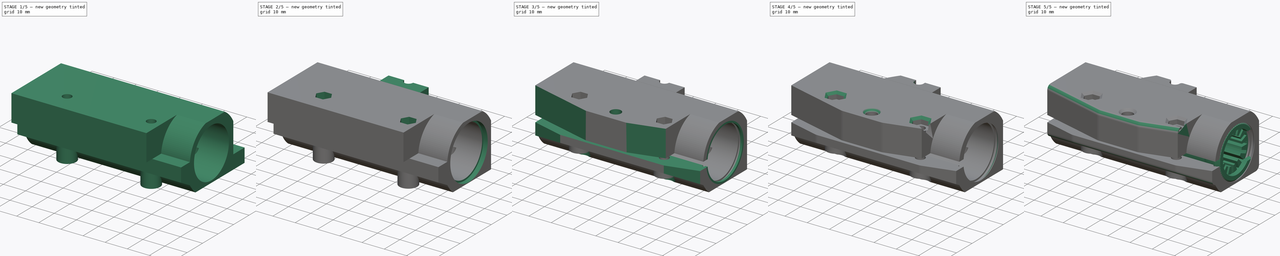
[diagram: build sequence overview — one tinted view per stage of 5, left to right]
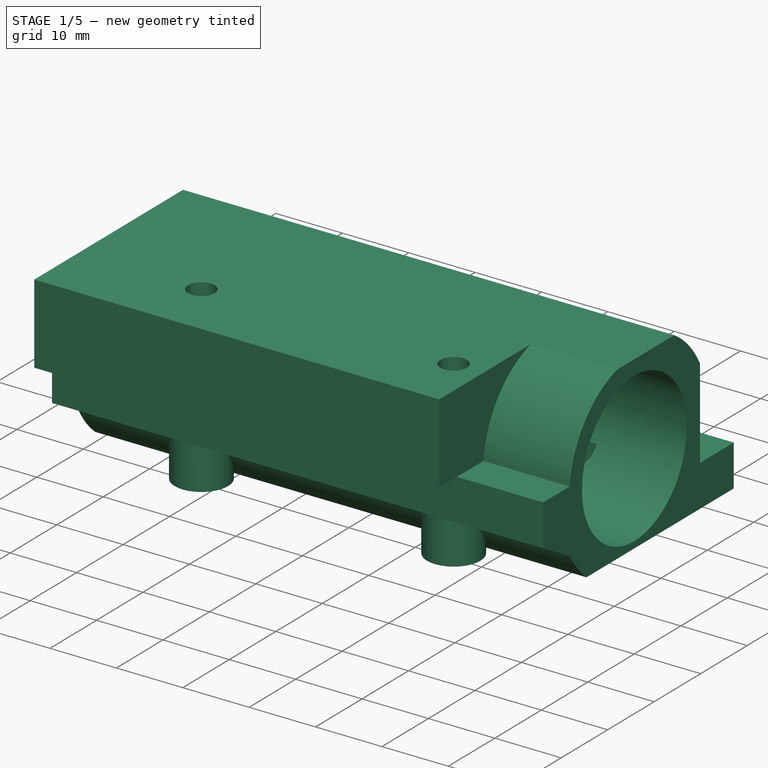
[diagram: stage 1 of 5 — iso view after this stage's code; geometry added in this stage tinted green]
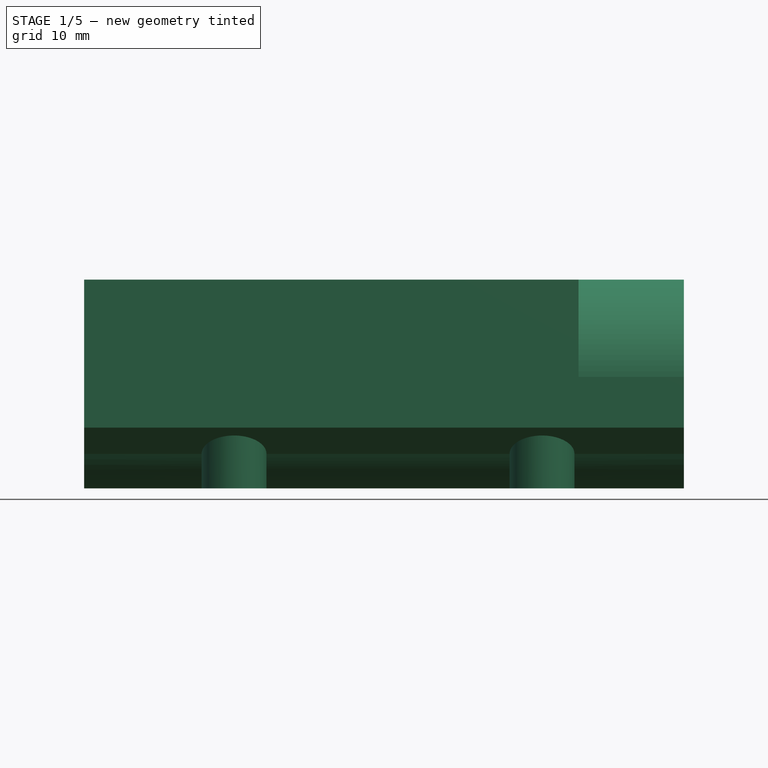
[diagram: stage 1 of 5 — front view after this stage's code; geometry added in this stage tinted green]
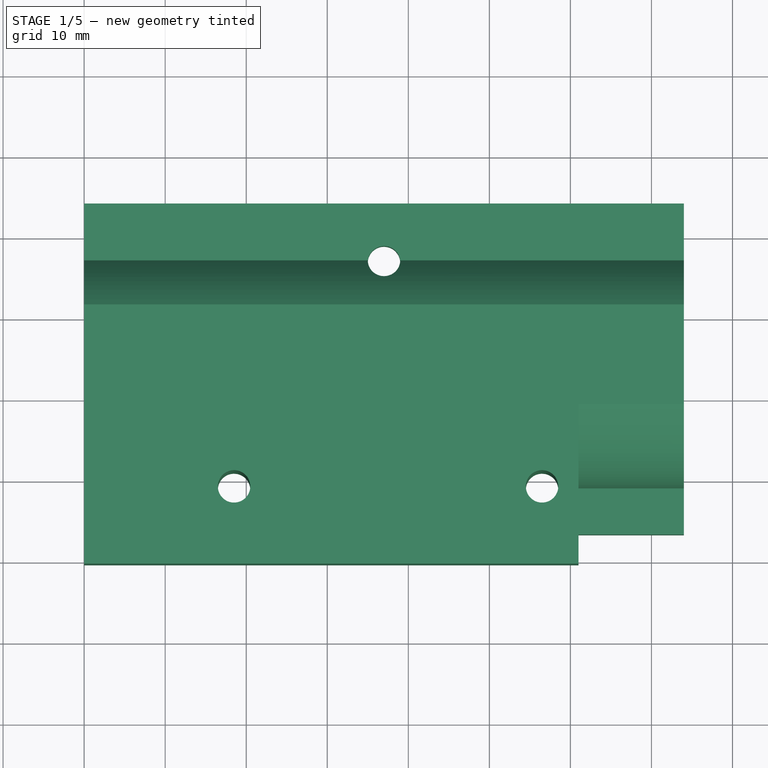
[diagram: stage 1 of 5 — top view after this stage's code; geometry added in this stage tinted green]
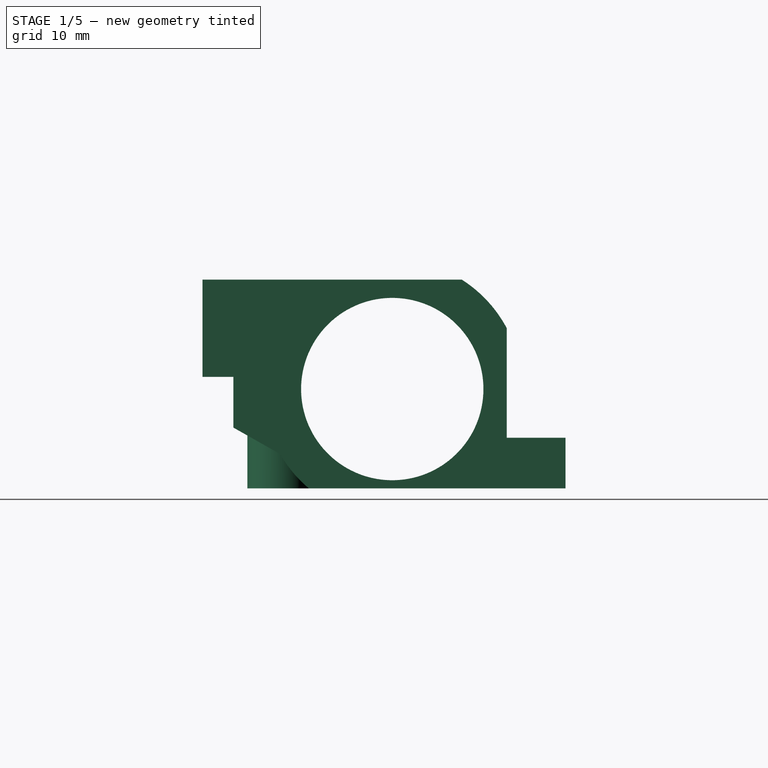
[diagram: stage 1 of 5 — right view after this stage's code; geometry added in this stage tinted green]
FCSTD DOCUMENT  (FreeCAD 0.17R13662 (Git))
Label: x_double_bearing_holder_v0.1
License: CreativeCommons Attribution-ShareAlike
LicenseURL: http://creativecommons.org/licenses/by-sa/4.0/
objects: Sketcher::SketchObject×19, PartDesign::Pocket×13, App::FeaturePython×9, PartDesign::Pad×6, Part::FeaturePython×4, PartDesign::Chamfer×4, PartDesign::Fillet×3, PartDesign::Body×1
note: 69 computed .brp shape members not serialized (recipe doc carries the construction recipe); baked Part::Feature solids carry a one-line shape summary decoded from their .brp

FEATURE [Sketcher::SketchObject] Sketch
  MapMode = 5
  Placement = pos=(0,0,0) rot=(0.57735,0.57735,0.57735;2.0944rad)
  Support = -> [YZ_Plane]
  sketch-geometry (12):
    g0: Circle [constr] CenterX=32.875 CenterY=12.25 CenterZ=0 NormalX=0 NormalY=0 NormalZ=1 AngleXU=0 Radius=16
    g1: ArcOfCircle CenterX=32.875 CenterY=12.25 CenterZ=0 NormalX=0 NormalY=0 NormalZ=1 AngleXU=0 Radius=16 StartAngle=0.48898 EndAngle=1.00423
    g2: LineSegment StartX=47 StartY=19.7656 StartZ=0 EndX=47 EndY=6.25 EndZ=0
    g3: LineSegment StartX=47 StartY=6.25 StartZ=0 EndX=54.25 EndY=6.25 EndZ=0
    g4: LineSegment StartX=54.25 StartY=6.25 StartZ=0 EndX=54.25 EndY=0 EndZ=0
    g5: LineSegment StartX=54.25 StartY=0 StartZ=0 EndX=22.5824 EndY=0 EndZ=0
    g6: LineSegment StartX=13.2686 StartY=13.75 StartZ=0 EndX=9.46278 EndY=13.75 EndZ=0
    g7: LineSegment StartX=9.46278 StartY=13.75 StartZ=0 EndX=9.46278 EndY=25.75 EndZ=0
    g8: LineSegment StartX=9.46278 StartY=25.75 StartZ=0 EndX=41.4628 EndY=25.75 EndZ=0
    g9: ArcOfCircle CenterX=32.875 CenterY=12.25 CenterZ=0 NormalX=0 NormalY=0 NormalZ=1 AngleXU=0 Radius=16 StartAngle=3.66519 EndAngle=4.0136
    g10: LineSegment StartX=13.2686 StartY=13.75 StartZ=0 EndX=13.2686 EndY=7.5 EndZ=0
    g11: LineSegment StartX=13.2686 StartY=7.5 StartZ=0 EndX=19.0186 EndY=4.25 EndZ=0
  constraints (36):
    c: DistanceX(g0) = 32.875
    c: DistanceY(g0) = 12.25
    c: Radius(g0) = 16
    c: Coincident(g2,g3)
    c: Coincident(g3,g4)
    c: Coincident(g4,g5)
    c: Coincident(g9,g5)
    c: Horizontal(g5)
    c: Horizontal(g3)
    c: Coincident(g1,g2)
    c: Equal(g1,g0)
    c: Vertical(g2)
    c: Vertical(g4)
    c: DistanceX(g4) = 54.25
    c: PointOnObject(g4,g-1)
    c: DistanceY(g4,g4) = 6.25
    c: Coincident(g0,g1)
    c: DistanceX(g3,g3) = 7.25
    c: Coincident(g6,g7)
    c: Coincident(g7,g8)
    c: Horizontal(g8)
    c: Horizontal(g6)
    c: Vertical(g7)
    c: DistanceY(g7,g7) = 12
    c: Equal(g1,g9)
    c: Coincident(g1,g9)
    c: DistanceY(g6) = 13.75
    c: Coincident(g1,g8)
    c: DistanceX(g8,g8) = 32
    c: Coincident(g10,g11)
    c: Vertical(g10)
    c: DistanceY(g10,g10) = 6.25
    c: Coincident(g9,g11)
    c: DistanceX(g11,g11) = 5.75
    c: Coincident(g6,g10)
    c: DistanceY(g11,g11) = 3.25
FEATURE [Sketcher::SketchObject] Sketch001
  MapMode = 5
  Placement = pos=(0,0,0) rot=(0.707107,0.707107,0;3.14159rad)
  sketch-geometry (2):
    g0: Circle CenterX=19 CenterY=18.5 CenterZ=0 NormalX=0 NormalY=0 NormalZ=1 AngleXU=0 Radius=4
    g1: Circle CenterX=19 CenterY=56.5 CenterZ=0 NormalX=0 NormalY=0 NormalZ=1 AngleXU=0 Radius=4
  constraints (6):
    c: DistanceX(g0) = 19
    c: DistanceY(g0) = 18.5
    c: Radius(g0) = 4
    c: DistanceX(g1,g0) = 0
    c: DistanceY(g1,g0) = -38
    c: Equal(g1,g0)
FEATURE [Sketcher::SketchObject] Sketch002
  MapMode = 5
  Placement = pos=(0,0,0) rot=(0.707107,0.707107,0;3.14159rad)
  sketch-geometry (2):
    g0: Circle CenterX=43 CenterY=59 CenterZ=0 NormalX=0 NormalY=0 NormalZ=1 AngleXU=0 Radius=2.35
    g1: Circle CenterX=43 CenterY=15 CenterZ=0 NormalX=0 NormalY=0 NormalZ=1 AngleXU=0 Radius=2.35
  constraints (6):
    c: DistanceX(g1) = 43
    c: DistanceY(g1) = 15
    c: DistanceX(g1,g0) = 0
    c: DistanceY(g1,g0) = 44
    c: Radius(g1) = 2.35
    c: Equal(g1,g0)
FEATURE [Sketcher::SketchObject] Sketch003
  MapMode = 5
  Placement = pos=(0,0,25.75) rot=(0,0,-1;1.5708rad)
  sketch-geometry (4):
    g0: Circle CenterX=-19 CenterY=56.5 CenterZ=0 NormalX=0 NormalY=0 NormalZ=1 AngleXU=0 Radius=2
    g1: Circle CenterX=-47 CenterY=37 CenterZ=0 NormalX=0 NormalY=0 NormalZ=1 AngleXU=0 Radius=2
    g2: LineSegment [constr] StartX=-19 StartY=56.5 StartZ=0 EndX=-19 EndY=18.5 EndZ=0
    g3: Circle CenterX=-19 CenterY=18.5 CenterZ=0 NormalX=0 NormalY=0 NormalZ=1 AngleXU=0 Radius=2
  constraints (11):
    c: DistanceX(g1) = -47
    c: DistanceY(g1) = 37
    c: DistanceX(g0,g1) = -28
    c: Radius(g1) = 2
    c: Equal(g1,g0)
    c: DistanceY(g0) = 56.5
    c: Vertical(g2)
    c: Coincident(g0,g2)
    c: Coincident(g2,g3)
    c: DistanceY(g2,g2) = 38
    c: Equal(g3,g0)
FEATURE [Sketcher::SketchObject] Sketch004
  MapMode = 5
  Placement = pos=(74,0,0) rot=(0.57735,0.57735,0.57735;2.0944rad)
  sketch-geometry (1):
    g0: Circle CenterX=32.875 CenterY=12.25 CenterZ=0 NormalX=0 NormalY=0 NormalZ=1 AngleXU=0 Radius=11.25
  constraints (3):
    c: DistanceX(g0) = 32.875
    c: DistanceY(g0) = 12.25
    c: Radius(g0) = 11.25
FEATURE [Sketcher::SketchObject] Sketch006
  MapMode = 5
  Placement = pos=(74,0,0) rot=(0.57735,0.57735,0.57735;2.0944rad)
  sketch-geometry (4):
    g0: ArcOfCircle CenterX=32.875 CenterY=12.25 CenterZ=0 NormalX=0 NormalY=0 NormalZ=1 AngleXU=0 Radius=14 StartAngle=1.83886 EndAngle=3.03424
    g1: LineSegment StartX=29.1669 StartY=25.75 StartZ=0 EndX=9.45559 EndY=25.75 EndZ=0
    g2: LineSegment StartX=9.45559 StartY=25.75 StartZ=0 EndX=9.45559 EndY=13.75 EndZ=0
    g3: LineSegment StartX=9.45559 StartY=13.75 StartZ=0 EndX=18.9556 EndY=13.75 EndZ=0
  constraints (13):
    c: DistanceX(g0) = 32.875
    c: DistanceY(g0) = 12.25
    c: Coincident(g1,g2)
    c: Coincident(g2,g3)
    c: Coincident(g0,g3)
    c: Horizontal(g3)
    c: Horizontal(g1)
    c: Coincident(g0,g1)
    c: Vertical(g2)
    c: Radius(g0) = 14
    c: DistanceY(g0) = 13.75
    c: DistanceX(g3,g3) = 9.5
    c: DistanceY(g2,g2) = 12
FEATURE [Sketcher::SketchObject] Sketch007
  MapMode = 5
  Placement = pos=(0,0,25.75) rot=(0,0,-1;1.5708rad)
  sketch-geometry (14):
    g0: LineSegment StartX=-19 StartY=21.85 StartZ=0 EndX=-21.9012 EndY=20.175 EndZ=0
    g1: LineSegment StartX=-21.9012 StartY=20.175 StartZ=0 EndX=-21.9012 EndY=16.825 EndZ=0
    g2: LineSegment StartX=-21.9012 StartY=16.825 StartZ=0 EndX=-19 EndY=15.15 EndZ=0
    g3: LineSegment StartX=-19 StartY=15.15 StartZ=0 EndX=-16.0988 EndY=16.825 EndZ=0
    g4: LineSegment StartX=-16.0988 StartY=16.825 StartZ=0 EndX=-16.0988 EndY=20.175 EndZ=0
    g5: LineSegment StartX=-16.0988 StartY=20.175 StartZ=0 EndX=-19 EndY=21.85 EndZ=0
    g6: Circle [constr] CenterX=-19 CenterY=18.5 CenterZ=0 NormalX=0 NormalY=0 NormalZ=1 AngleXU=0 Radius=3.35
    g7: LineSegment StartX=-21.9012 StartY=58.175 StartZ=0 EndX=-21.9012 EndY=54.825 EndZ=0
    g8: LineSegment StartX=-21.9012 StartY=54.825 StartZ=0 EndX=-19 EndY=53.15 EndZ=0
    g9: LineSegment StartX=-19 StartY=53.15 StartZ=0 EndX=-16.0988 EndY=54.825 EndZ=0
    g10: LineSegment StartX=-16.0988 StartY=54.825 StartZ=0 EndX=-16.0988 EndY=58.175 EndZ=0
    g11: LineSegment StartX=-16.0988 StartY=58.175 StartZ=0 EndX=-19 EndY=59.85 EndZ=0
    g12: LineSegment StartX=-19 StartY=59.85 StartZ=0 EndX=-21.9012 EndY=58.175 EndZ=0
    g13: Circle [constr] CenterX=-19 CenterY=56.5 CenterZ=0 NormalX=0 NormalY=0 NormalZ=1 AngleXU=0 Radius=3.35
  constraints (34):
    c: Coincident(g0,g1)
    c: Coincident(g1,g2)
    c: Coincident(g2,g3)
    c: Coincident(g3,g4)
    c: Coincident(g4,g5)
    c: Coincident(g5,g0)
    c: Equal(g0, g1-g5) x5
    c: PointOnObject(g0,g6)
    c: PointOnObject(g1,g6)
    c: PointOnObject(g2,g6)
    c: PointOnObject(g3,g6)
    c: PointOnObject(g4,g6)
    c: PointOnObject(g5,g6)
    c: DistanceX(g6) = -19
    c: DistanceY(g6) = 18.5
    c: Vertical(g1)
    c: Radius(g6) = 3.35
    c: Coincident(g7,g8)
    c: Coincident(g8,g9)
    c: Coincident(g9,g10)
    c: Coincident(g10,g11)
    c: Coincident(g11,g12)
    c: Coincident(g12,g7)
    c: Equal(g7, g8-g12) x5
    c: PointOnObject(g7,g13)
    c: PointOnObject(g8,g13)
    c: PointOnObject(g9,g13)
    c: PointOnObject(g10,g13)
    c: PointOnObject(g11,g13)
    c: PointOnObject(g12,g13)
    c: Vertical(g7)
    c: DistanceX(g13,g6) = 0
    c: DistanceY(g13,g6) = -38
    c: Equal(g13,g6)
FEATURE [Sketcher::SketchObject] Sketch008
  MapMode = 5
  Placement = pos=(0,0,25.75) rot=(0,0,-1;1.5708rad)
  sketch-geometry (6):
    g0: LineSegment StartX=-41.5 StartY=46 StartZ=0 EndX=-47 EndY=46 EndZ=0
    g1: LineSegment StartX=-47 StartY=28 StartZ=0 EndX=-41.5 EndY=28 EndZ=0
    g2: LineSegment StartX=-41.5 StartY=28 StartZ=0 EndX=-41.5 EndY=46 EndZ=0
    g3: ArcOfCircle CenterX=-47 CenterY=37 CenterZ=0 NormalX=0 NormalY=0 NormalZ=1 AngleXU=0 Radius=2 StartAngle=4.71239 EndAngle=7.85398
    g4: LineSegment StartX=-47 StartY=35 StartZ=0 EndX=-47 EndY=28 EndZ=0
    g5: LineSegment StartX=-47 StartY=46 StartZ=0 EndX=-47 EndY=39 EndZ=0
  constraints (19):
    c: Coincident(g4,g1)
    c: Coincident(g1,g2)
    c: Coincident(g2,g0)
    c: Horizontal(g0)
    c: Horizontal(g1)
    c: Vertical(g2)
    c: DistanceX(g0,g0) = 5.5
    c: DistanceY(g2,g2) = 18
    c: DistanceY(g0) = 46
    c: DistanceX(g3) = -47
    c: DistanceY(g3) = 37
    c: Radius(g3) = 2
    c: Coincident(g3,g5)
    c: Coincident(g0,g5)
    c: Vertical(g5)
    c: Vertical(g4)
    c: PointOnObject(g3,g5)
    c: Coincident(g3,g4)
    c: PointOnObject(g3,g4)
FEATURE [Sketcher::SketchObject] Sketch009
  MapMode = 5
  Placement = pos=(0,0,6.25) rot=(0,0,-1;1.5708rad)
  sketch-geometry (6):
    g0: LineSegment StartX=-47 StartY=0 StartZ=0 EndX=-53 EndY=17.5 EndZ=0
    g1: LineSegment StartX=-53 StartY=17.5 StartZ=0 EndX=-53 EndY=56.5 EndZ=0
    g2: LineSegment StartX=-53 StartY=56.5 StartZ=0 EndX=-47 EndY=74 EndZ=0
    g3: LineSegment StartX=-47 StartY=74 StartZ=0 EndX=-54.25 EndY=74 EndZ=0
    g4: LineSegment StartX=-54.25 StartY=74 StartZ=0 EndX=-54.25 EndY=0 EndZ=0
    g5: LineSegment StartX=-54.25 StartY=0 StartZ=0 EndX=-47 EndY=0 EndZ=0
  constraints (18):
    c: Coincident(g0,g1)
    c: Coincident(g1,g2)
    c: Coincident(g2,g3)
    c: Coincident(g3,g4)
    c: Coincident(g4,g5)
    c: Coincident(g5,g0)
    c: Horizontal(g5)
    c: Horizontal(g3)
    c: Vertical(g4)
    c: Vertical(g1)
    c: PointOnObject(g0,g-1)
    c: DistanceX(g0) = -47
    c: DistanceX(g5,g5) = 7.25
    c: DistanceY(g4,g4) = 74
    c: Equal(g3,g5)
    c: DistanceX(g2,g2) = 6
    c: DistanceY(g2,g2) = 17.5
    c: Equal(g0,g2)
FEATURE [Sketcher::SketchObject] Sketch010
  MapMode = 5
  Placement = pos=(74,0,0) rot=(0.57735,0.57735,0.57735;2.0944rad)
  sketch-geometry (1):
    g0: Circle CenterX=32.875 CenterY=12.25 CenterZ=0 NormalX=0 NormalY=0 NormalZ=1 AngleXU=0 Radius=12
  constraints (3):
    c: DistanceX(g0) = 32.875
    c: DistanceY(g0) = 12.25
    c: Radius(g0) = 12
FEATURE [Sketcher::SketchObject] Sketch011
  MapMode = 5
  Placement = pos=(0,0,0) rot=(0.57735,0.57735,-0.57735;4.18879rad)
  sketch-geometry (1):
    g0: Circle CenterX=32.875 CenterY=-12.25 CenterZ=0 NormalX=0 NormalY=0 NormalZ=1 AngleXU=0 Radius=12
  constraints (3):
    c: DistanceX(g0) = 32.875
    c: DistanceY(g0) = -12.25
    c: Radius(g0) = 12
FEATURE [Sketcher::SketchObject] Sketch012
  MapMode = 5
  Placement = pos=(0,0,0) rot=(0.57735,0.57735,-0.57735;4.18879rad)
  sketch-geometry (2):
    g0: Circle CenterX=32.875 CenterY=-12.25 CenterZ=0 NormalX=0 NormalY=0 NormalZ=1 AngleXU=0 Radius=12
    g1: Circle CenterX=32.875 CenterY=-12.25 CenterZ=0 NormalX=0 NormalY=0 NormalZ=1 AngleXU=0 Radius=11.25
  constraints (5):
    c: DistanceX(g0) = 32.875
    c: DistanceY(g0) = -12.25
    c: Radius(g0) = 12
    c: Coincident(g0,g1)
    c: Radius(g1) = 11.25
FEATURE [Sketcher::SketchObject] Sketch013
  MapMode = 5
  Placement = pos=(74,0,0) rot=(0.57735,0.57735,0.57735;2.0944rad)
  sketch-geometry (2):
    g0: Circle CenterX=32.875 CenterY=12.25 CenterZ=0 NormalX=0 NormalY=0 NormalZ=1 AngleXU=0 Radius=12
    g1: Circle CenterX=32.875 CenterY=12.25 CenterZ=0 NormalX=0 NormalY=0 NormalZ=1 AngleXU=0 Radius=11.25
  constraints (5):
    c: Coincident(g0,g1)
    c: DistanceX(g0) = 32.875
    c: DistanceY(g0) = 12.25
    c: Radius(g1) = 11.25
    c: Radius(g0) = 12
FEATURE [Sketcher::SketchObject] Sketch014
  MapMode = 5
  Placement = pos=(74,0,0) rot=(0.57735,0.57735,0.57735;2.0944rad)
  sketch-geometry (4):
    g0: LineSegment StartX=23 StartY=10.75 StartZ=0 EndX=9.5 EndY=10.75 EndZ=0
    g1: LineSegment StartX=9.5 StartY=10.75 StartZ=0 EndX=9.5 EndY=13.75 EndZ=0
    g2: LineSegment StartX=9.5 StartY=13.75 StartZ=0 EndX=23 EndY=13.75 EndZ=0
    g3: LineSegment StartX=23 StartY=13.75 StartZ=0 EndX=23 EndY=10.75 EndZ=0
  constraints (12):
    c: Coincident(g0,g1)
    c: Coincident(g1,g2)
    c: Coincident(g2,g3)
    c: Coincident(g3,g0)
    c: Horizontal(g0)
    c: Horizontal(g2)
    c: Vertical(g1)
    c: Vertical(g3)
    c: DistanceX(g0) = 23
    c: DistanceY(g0) = 10.75
    c: DistanceY(g3,g3) = 3
    c: DistanceX(g2,g2) = 13.5
FEATURE [Sketcher::SketchObject] Sketch015
  MapMode = 5
  Placement = pos=(0,0,0) rot=(0.707107,0.707107,0;3.14159rad)
  sketch-geometry (2):
    g0: Circle CenterX=19 CenterY=18.5 CenterZ=0 NormalX=0 NormalY=0 NormalZ=1 AngleXU=0 Radius=4
    g1: Circle CenterX=19 CenterY=56.5 CenterZ=0 NormalX=0 NormalY=0 NormalZ=1 AngleXU=0 Radius=4
  constraints (6):
    c: Radius(g0) = 4
    c: DistanceX(g0) = 19
    c: DistanceY(g0) = 18.5
    c: DistanceX(g1,g0) = 0
    c: DistanceY(g1,g0) = -38
    c: Equal(g0,g1)
FEATURE [Sketcher::SketchObject] Sketch016
  MapMode = 5
  Placement = pos=(0,0,13.75) rot=(0.707107,0.707107,0;3.14159rad)
  sketch-geometry (6):
    g0: LineSegment StartX=9.45 StartY=0 StartZ=0 EndX=16.95 EndY=0 EndZ=0
    g1: LineSegment StartX=16.95 StartY=0 StartZ=0 EndX=9.45 EndY=28 EndZ=0
    g2: LineSegment StartX=9.45 StartY=28 StartZ=0 EndX=9.45 EndY=0 EndZ=0
    g3: LineSegment StartX=9.45 StartY=46 StartZ=0 EndX=16.95 EndY=74 EndZ=0
    g4: LineSegment StartX=16.95 StartY=74 StartZ=0 EndX=9.45 EndY=74 EndZ=0
    g5: LineSegment StartX=9.45 StartY=74 StartZ=0 EndX=9.45 EndY=46 EndZ=0
  constraints (18):
    c: Coincident(g0,g1)
    c: Coincident(g1,g2)
    c: Coincident(g0,g2)
    c: PointOnObject(g0,g-1)
    c: Horizontal(g0)
    c: DistanceX(g0) = 9.45
    c: DistanceX(g0,g0) = 7.5
    c: DistanceY(g1,g1) = 28
    c: Vertical(g2)
    c: Coincident(g3,g4)
    c: Coincident(g3,g5)
    c: Coincident(g4,g5)
    c: Horizontal(g4)
    c: Vertical(g5)
    c: DistanceX(g3,g1) = 0
    c: DistanceY(g4) = 74
    c: Equal(g5,g2)
    c: Equal(g4,g0)
FEATURE [App::FeaturePython] circularEdgeConstraint01_mirror  label="circularEdgeConstraint01__x_double_bearing_holder_01"  # a2plus constraint (typed FeaturePython)
  Object1 = x_double_bearing_holder_01
  Object2 = x_double_bearing_holder_v1_3_1_01
  SubElement1 = Edge54
  SubElement2 = Edge12
  Type = circularEdge
  directionConstraint = 0
  lockRotation = false
  offset = 0
FEATURE [PartDesign::Pad] Pad
  Length = 74
  Length2 = 100
  Placement = pos=(0,0,0) rot=(0.57735,0.57735,0.57735;2.0944rad)
  Profile = -> Sketch
  Type = 0
FEATURE [PartDesign::Pad] Pad001
  BaseFeature = -> Pad
  Length = 10
  Length2 = 100
  Placement = pos=(0,0,0) rot=(0.57735,0.57735,0.57735;2.0944rad)
  Profile = -> Sketch001
  Reversed = true
  Type = 0
FEATURE [PartDesign::Pocket] Pocket
  BaseFeature = -> Pad001
  Length = 7
  Length2 = 100
  Placement = pos=(0,0,0) rot=(0.57735,0.57735,0.57735;2.0944rad)
  Profile = -> Sketch002
  Type = 0
FEATURE [PartDesign::Pocket] Pocket001
  BaseFeature = -> Pocket
  Length = 5
  Length2 = 100
  Placement = pos=(0,0,0) rot=(0.57735,0.57735,0.57735;2.0944rad)
  Profile = -> Sketch003
  Type = 1
FEATURE [PartDesign::Pocket] Pocket002
  BaseFeature = -> Pocket001
  Length = 5
  Length2 = 100
  Placement = pos=(0,0,0) rot=(0.57735,0.57735,0.57735;2.0944rad)
  Profile = -> Sketch004
  Type = 1
FEATURE [Sketcher::SketchObject] Sketch017
  MapMode = 5
  Placement = pos=(0,0,22.75) rot=(0,0,-1;1.5708rad)
  sketch-geometry (2):
    g0: ArcOfCircle CenterX=-20 CenterY=37.5 CenterZ=0 NormalX=0 NormalY=0 NormalZ=1 AngleXU=0 Radius=3.5 StartAngle=3.9372 EndAngle=8.62918
    g1: LineSegment StartX=-22.4495 StartY=40 StartZ=0 EndX=-22.4495 EndY=35 EndZ=0
  constraints (7):
    c: DistanceX(g0) = -20
    c: DistanceY(g0) = 37.5
    c: Radius(g0) = 3.5
    c: Vertical(g1)
    c: Coincident(g0,g1)
    c: Coincident(g0,g1)
    c: DistanceY(g1,g1) = 5
FEATURE [PartDesign::Pocket] Pocket003
  BaseFeature = -> Pocket002
  Length = 13
  Length2 = 100
  Placement = pos=(0,0,0) rot=(0.57735,0.57735,0.57735;2.0944rad)
  Profile = -> Sketch006
  Type = 0
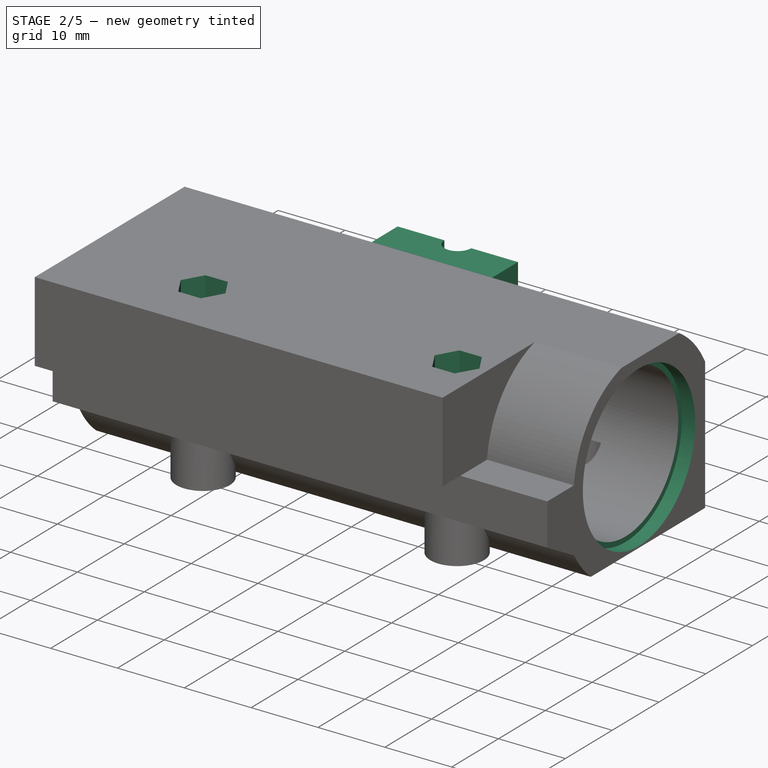
[diagram: stage 2 of 5 — iso view after this stage's code; geometry added in this stage tinted green]
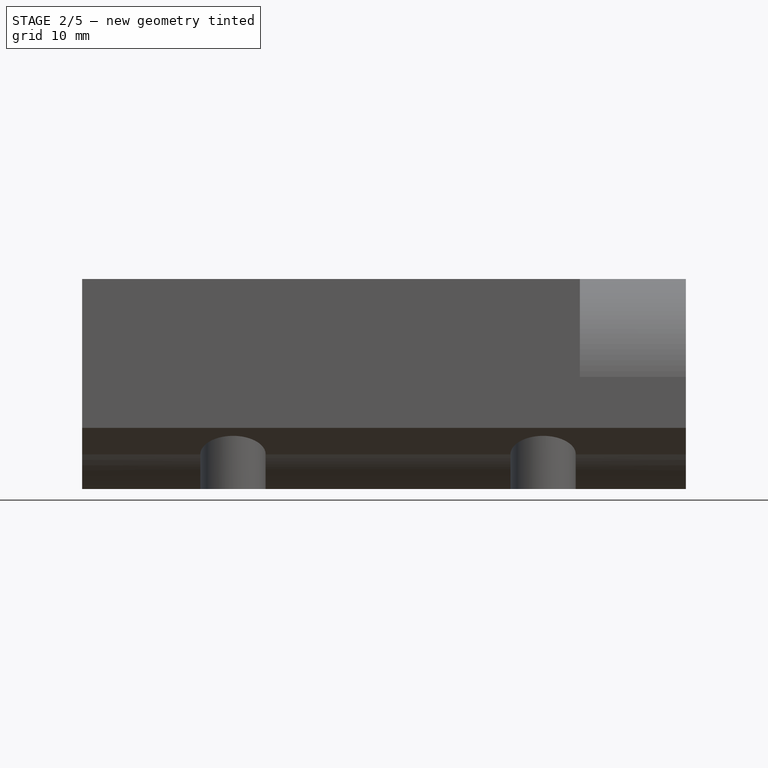
[diagram: stage 2 of 5 — front view after this stage's code; geometry added in this stage tinted green]
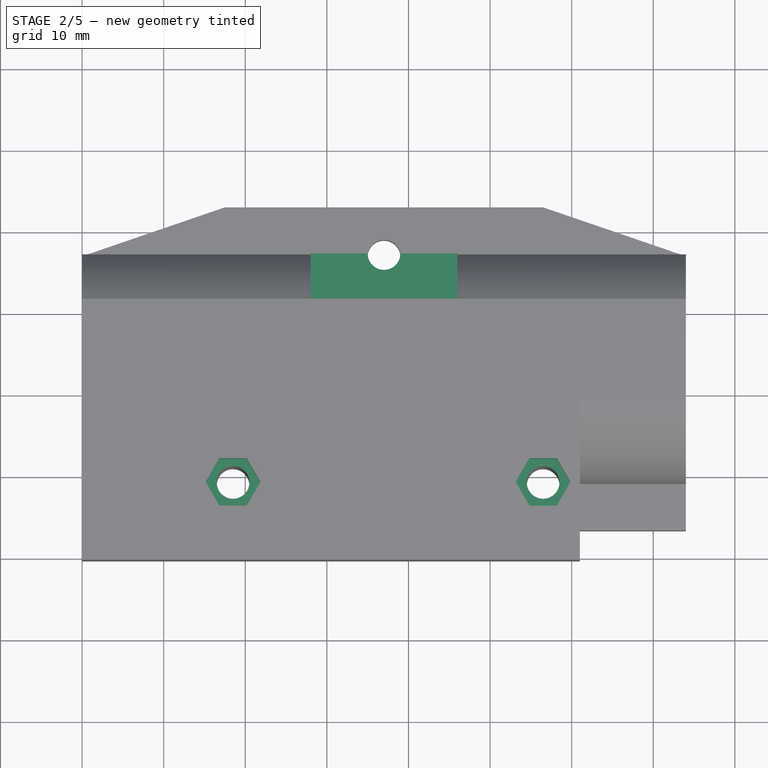
[diagram: stage 2 of 5 — top view after this stage's code; geometry added in this stage tinted green]
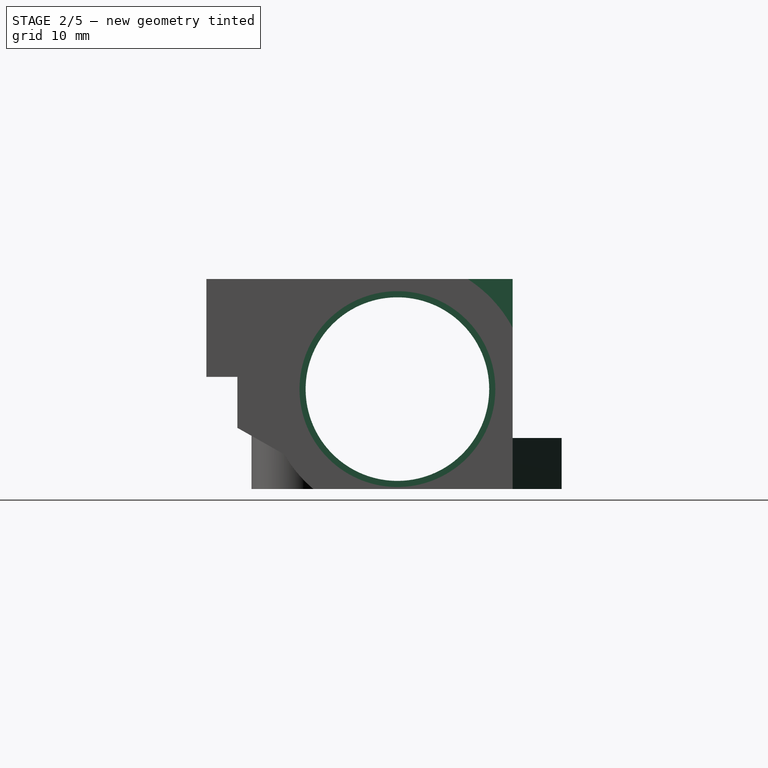
[diagram: stage 2 of 5 — right view after this stage's code; geometry added in this stage tinted green]
FEATURE [PartDesign::Pocket] Pocket004
  BaseFeature = -> Pocket003
  Length = 3
  Length2 = 100
  Placement = pos=(0,0,0) rot=(0.57735,0.57735,0.57735;2.0944rad)
  Profile = -> Sketch007
  Type = 0
FEATURE [PartDesign::Pad] Pad002
  BaseFeature = -> Pocket004
  Length = 6
  Length2 = 100
  Placement = pos=(0,0,0) rot=(0.57735,0.57735,0.57735;2.0944rad)
  Profile = -> Sketch008
  Reversed = true
  Type = 0
FEATURE [PartDesign::Pocket] Pocket005
  BaseFeature = -> Pad002
  Length = 7
  Length2 = 100
  Placement = pos=(0,0,0) rot=(0.57735,0.57735,0.57735;2.0944rad)
  Profile = -> Sketch009
  Type = 0
FEATURE [PartDesign::Pocket] Pocket006
  BaseFeature = -> Pocket005
  Length = 2
  Length2 = 100
  Placement = pos=(0,0,0) rot=(0.57735,0.57735,0.57735;2.0944rad)
  Profile = -> Sketch010
  Type = 0
FEATURE [PartDesign::Pocket] Pocket007
  BaseFeature = -> Pocket006
  Length = 2
  Length2 = 100
  Placement = pos=(0,0,0) rot=(0.57735,0.57735,0.57735;2.0944rad)
  Profile = -> Sketch011
  Type = 0
FEATURE [PartDesign::Pad] Pad003
  BaseFeature = -> Pocket007
  Length = 1
  Length2 = 100
  Placement = pos=(0,0,0) rot=(0.57735,0.57735,0.57735;2.0944rad)
  Profile = -> Sketch012
  Reversed = true
  Type = 0
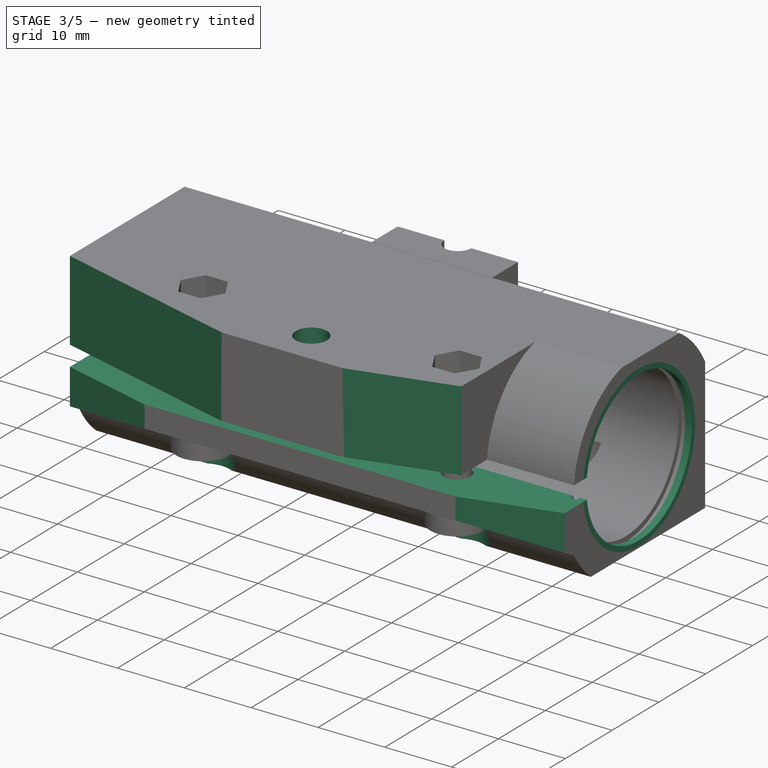
[diagram: stage 3 of 5 — iso view after this stage's code; geometry added in this stage tinted green]
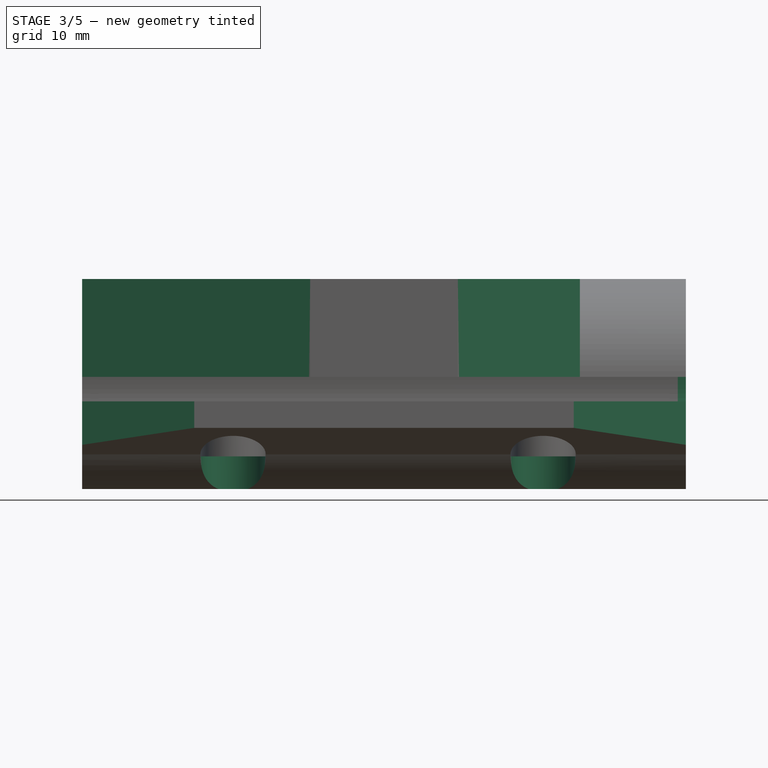
[diagram: stage 3 of 5 — front view after this stage's code; geometry added in this stage tinted green]
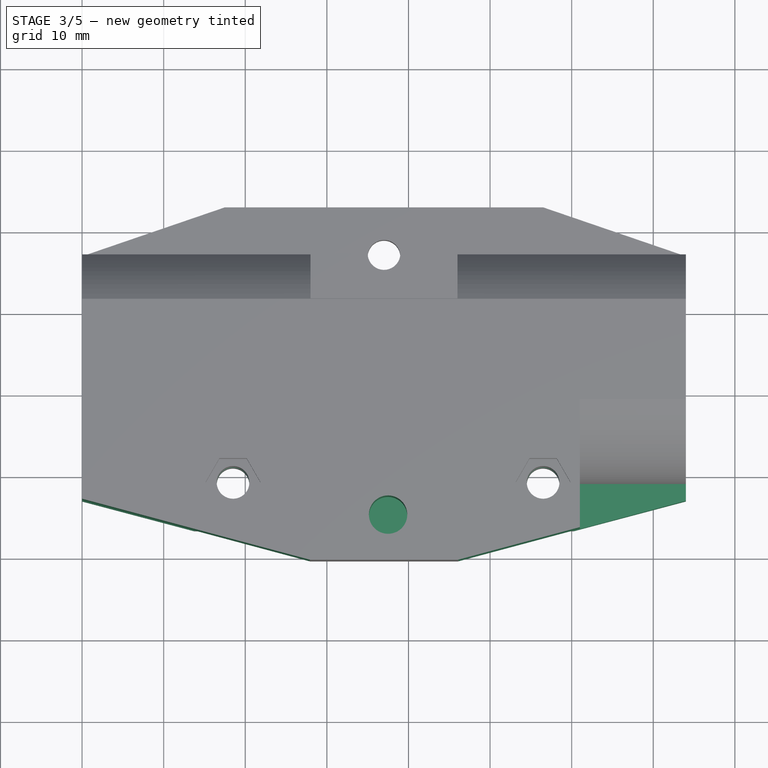
[diagram: stage 3 of 5 — top view after this stage's code; geometry added in this stage tinted green]
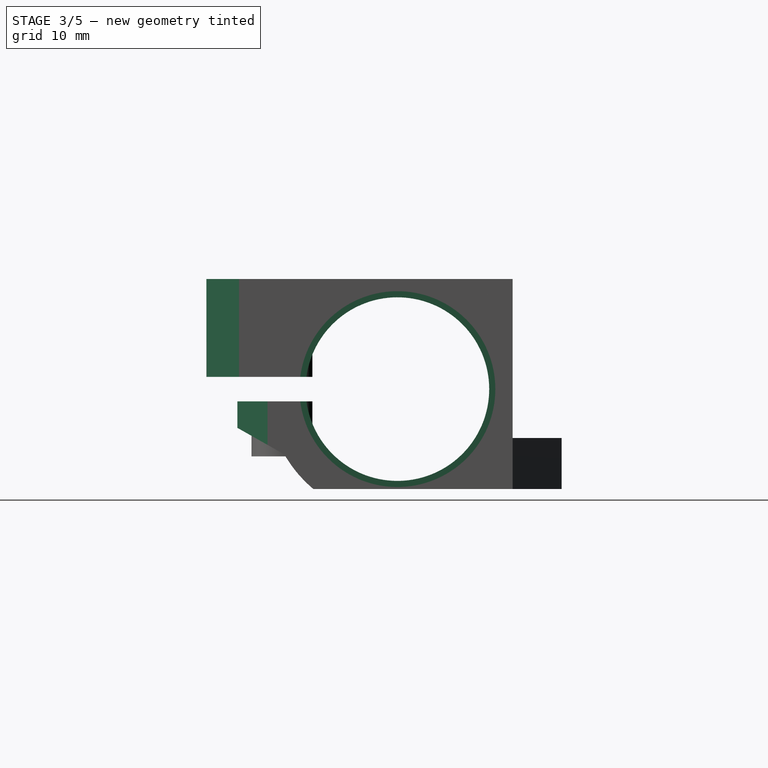
[diagram: stage 3 of 5 — right view after this stage's code; geometry added in this stage tinted green]
FEATURE [PartDesign::Pad] Pad004
  BaseFeature = -> Pad003
  Length = 1
  Length2 = 100
  Placement = pos=(0,0,0) rot=(0.57735,0.57735,0.57735;2.0944rad)
  Profile = -> Sketch013
  Reversed = true
  Type = 0
FEATURE [PartDesign::Pocket] Pocket008
  BaseFeature = -> Pad004
  Length = 4
  Length2 = 100
  Placement = pos=(0,0,0) rot=(0.57735,0.57735,0.57735;2.0944rad)
  Profile = -> Sketch015
  Type = 0
FEATURE [PartDesign::Pocket] Pocket009
  BaseFeature = -> Pocket008
  Length = 5
  Length2 = 100
  Midplane = true
  Placement = pos=(0,0,0) rot=(0.57735,0.57735,0.57735;2.0944rad)
  Profile = -> Sketch016
  Type = 1
FEATURE [PartDesign::Pad] Pad005
  BaseFeature = -> Pocket009
  Length = 16
  Length2 = 100
  Placement = pos=(0,0,0) rot=(0.57735,0.57735,0.57735;2.0944rad)
  Profile = -> Sketch017
  Reversed = true
  Type = 0
FEATURE [PartDesign::Pocket] Pocket010
  BaseFeature = -> Pad005
  Length = 5
  Length2 = 100
  Placement = pos=(0,0,0) rot=(0.57735,0.57735,0.57735;2.0944rad)
  Profile = -> Sketch014
  Type = 1
FEATURE [Sketcher::SketchObject] Sketch018
  MapMode = 5
  Placement = pos=(-3e-12,3e-12,25.75) rot=(0,0,-1;1.5708rad)
  Support = -> [Pocket010]
  sketch-geometry (1):
    g0: Circle CenterX=-15 CenterY=37.5 CenterZ=0 NormalX=0 NormalY=0 NormalZ=1 AngleXU=0 Radius=2.35
  constraints (3):
    c: DistanceX(g0) = -15
    c: DistanceY(g0) = 37.5
    c: Radius(g0) = 2.35
FEATURE [PartDesign::Pocket] Pocket011
  BaseFeature = -> Pocket010
  Length = 11
  Length2 = 100
  Placement = pos=(0,0,0) rot=(0.57735,0.57735,0.57735;2.0944rad)
  Profile = -> Sketch018
  Type = 0
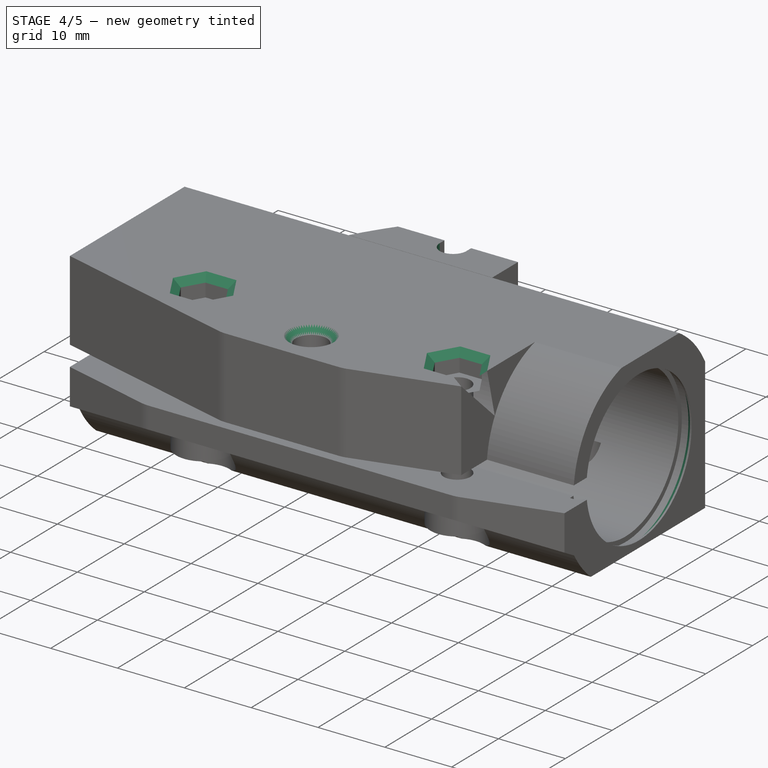
[diagram: stage 4 of 5 — iso view after this stage's code; geometry added in this stage tinted green]
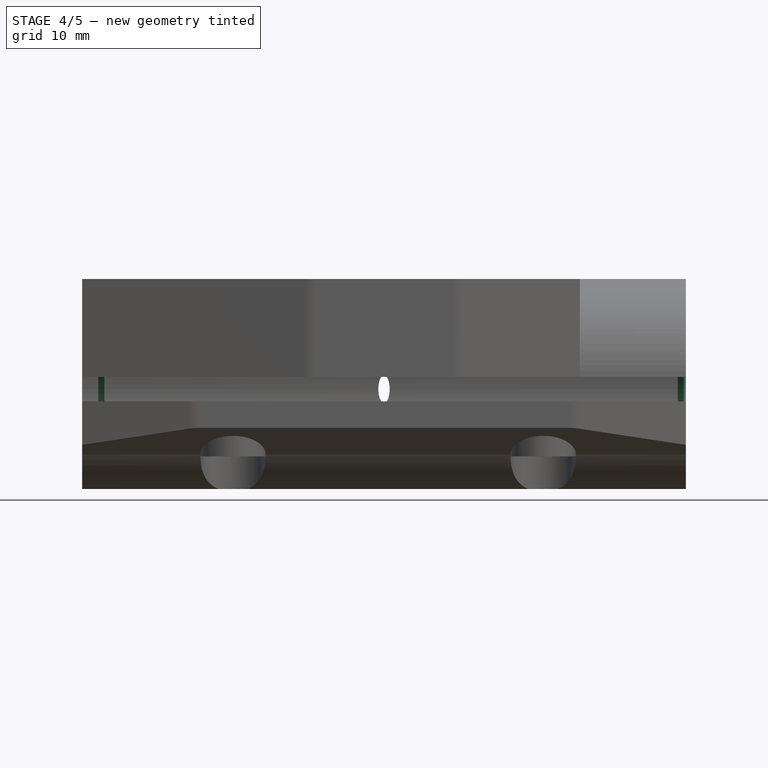
[diagram: stage 4 of 5 — front view after this stage's code; geometry added in this stage tinted green]
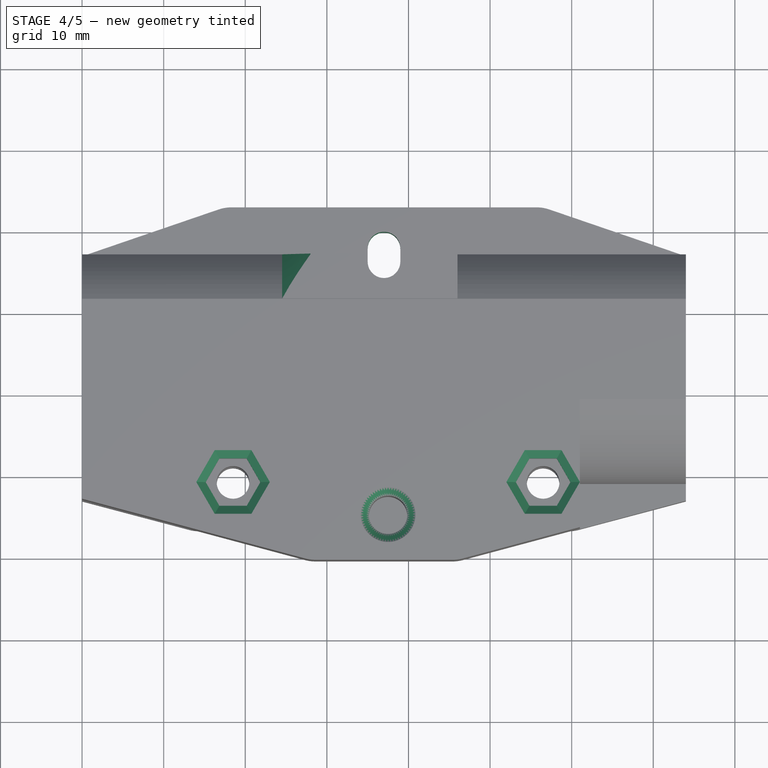
[diagram: stage 4 of 5 — top view after this stage's code; geometry added in this stage tinted green]
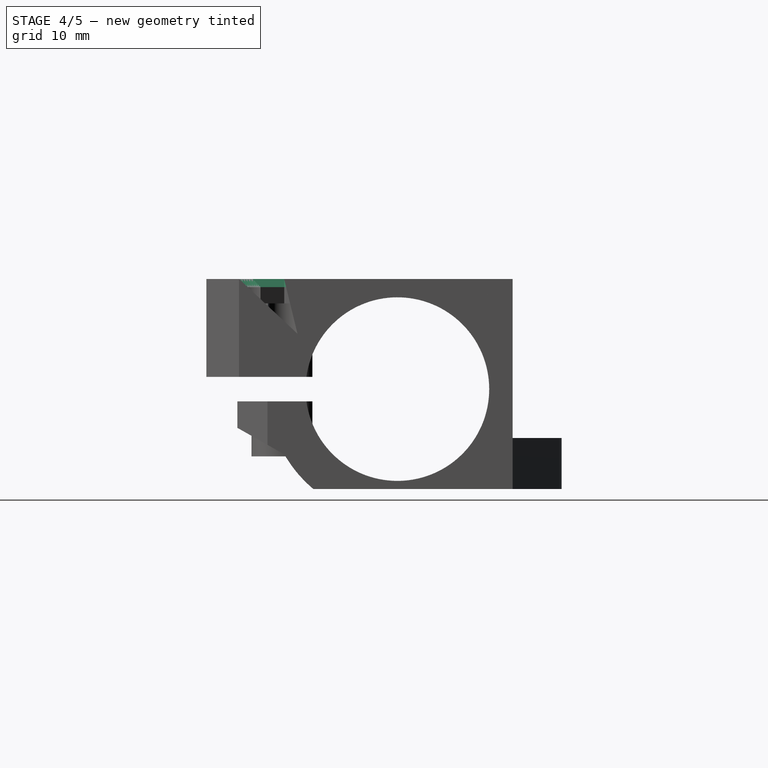
[diagram: stage 4 of 5 — right view after this stage's code; geometry added in this stage tinted green]
FEATURE [App::FeaturePython] circularEdgeConstraint05  label="circularEdgeConstraint05___2mm_bushing_retaining_ring_02"  # a2plus constraint (typed FeaturePython)
  Object1 = _2mm_high_precision_bushing_02
  Object2 = _2mm_bushing_retaining_ring_02
  SubElement1 = Edge198
  SubElement2 = Edge11
  Type = circularEdge
  directionConstraint = 1
  lockRotation = false
  offset = 0
FEATURE [App::FeaturePython] circularEdgeConstraint05_mirror  label="circularEdgeConstraint05___2mm_high_precision_bushing_02"  # a2plus constraint (typed FeaturePython)
  Object1 = _2mm_high_precision_bushing_02
  Object2 = _2mm_bushing_retaining_ring_02
  SubElement1 = Edge198
  SubElement2 = Edge11
  Type = circularEdge
  directionConstraint = 1
  lockRotation = false
  offset = 0
FEATURE [Sketcher::SketchObject] Sketch019
  MapMode = 5
  Placement = pos=(0,0,0) rot=(0.707107,0.707107,0;3.14159rad)
  Support = -> [Pocket011]
  sketch-geometry (4):
    g0: ArcOfCircle CenterX=46 CenterY=37 CenterZ=0 NormalX=0 NormalY=0 NormalZ=1 AngleXU=0 Radius=2 StartAngle=1.5708 EndAngle=4.71239
    g1: ArcOfCircle CenterX=48 CenterY=37 CenterZ=0 NormalX=0 NormalY=0 NormalZ=1 AngleXU=0 Radius=2 StartAngle=4.71239 EndAngle=7.85398
    g2: LineSegment StartX=46 StartY=35 StartZ=0 EndX=48 EndY=35 EndZ=0
    g3: LineSegment StartX=46 StartY=39 StartZ=0 EndX=48 EndY=39 EndZ=0
  constraints (10):
    c: Tangent(g0,g3) = 1.5708
    c: Tangent(g0,g2) = -1.5708
    c: Tangent(g2,g1) = -1.5708
    c: Tangent(g3,g1) = 1.5708
    c: Horizontal(g2)
    c: Equal(g0,g1)
    c: DistanceY(g0) = 37
    c: DistanceX(g3,g3) = 2
    c: DistanceX(g0) = 46
    c: Radius(g1) = 2
FEATURE [PartDesign::Pocket] Pocket012
  BaseFeature = -> Pocket011
  Length = 5
  Length2 = 100
  Placement = pos=(0,0,0) rot=(0.57735,0.57735,0.57735;2.0944rad)
  Profile = -> Sketch019
  Type = 1
FEATURE [PartDesign::Chamfer] Chamfer
  Base = -> Pocket012 [Edge113,Edge115]
  BaseFeature = -> Pocket012
  Placement = pos=(0,0,0) rot=(0.57735,0.57735,0.57735;2.0944rad)
  Size = 1.5
FEATURE [PartDesign::Chamfer] Chamfer001
  Base = -> Chamfer [Edge167,Edge166,Edge146,Edge140,Edge142,Edge144,Edge145,Edge143,Edge141,Edge139,Edge137,Edge135,Edge134,Edge136,Edge138]
  BaseFeature = -> Chamfer
  Placement = pos=(0,0,0) rot=(0.57735,0.57735,0.57735;2.0944rad)
  Size = 1
FEATURE [PartDesign::Chamfer] Chamfer002
  Base = -> Chamfer001 [Edge242,Edge223]
  BaseFeature = -> Chamfer001
  Placement = pos=(0,0,0) rot=(0.57735,0.57735,0.57735;2.0944rad)
  Size = 0.74
FEATURE [PartDesign::Chamfer] Chamfer003
  Base = -> Chamfer002 [Edge150]
  BaseFeature = -> Chamfer002
  Placement = pos=(0,0,0) rot=(0.57735,0.57735,0.57735;2.0944rad)
  Size = 3.49
FEATURE [PartDesign::Fillet] Fillet
  Base = -> Chamfer003 [Edge185,Edge149,Edge97,Edge180,Edge150,Edge177]
  BaseFeature = -> Chamfer003
  Placement = pos=(0,0,0) rot=(0.57735,0.57735,0.57735;2.0944rad)
  Radius = 5
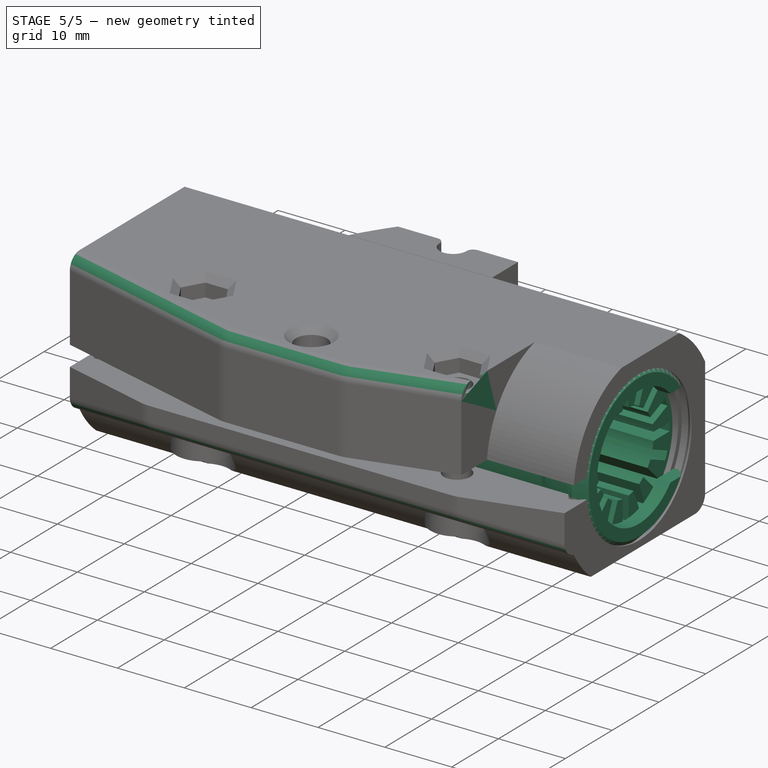
[diagram: stage 5 of 5 — iso view after this stage's code; geometry added in this stage tinted green]
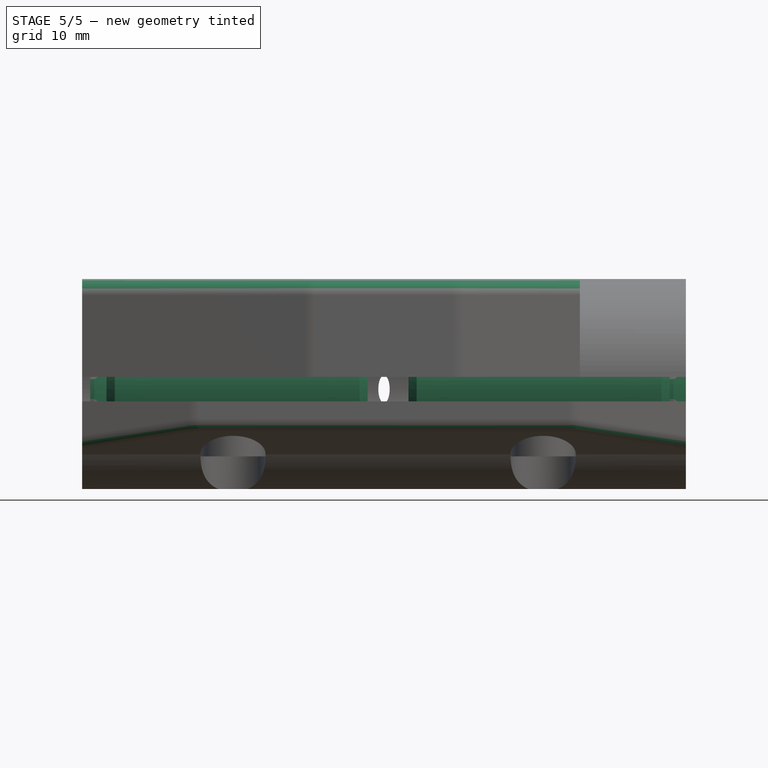
[diagram: stage 5 of 5 — front view after this stage's code; geometry added in this stage tinted green]
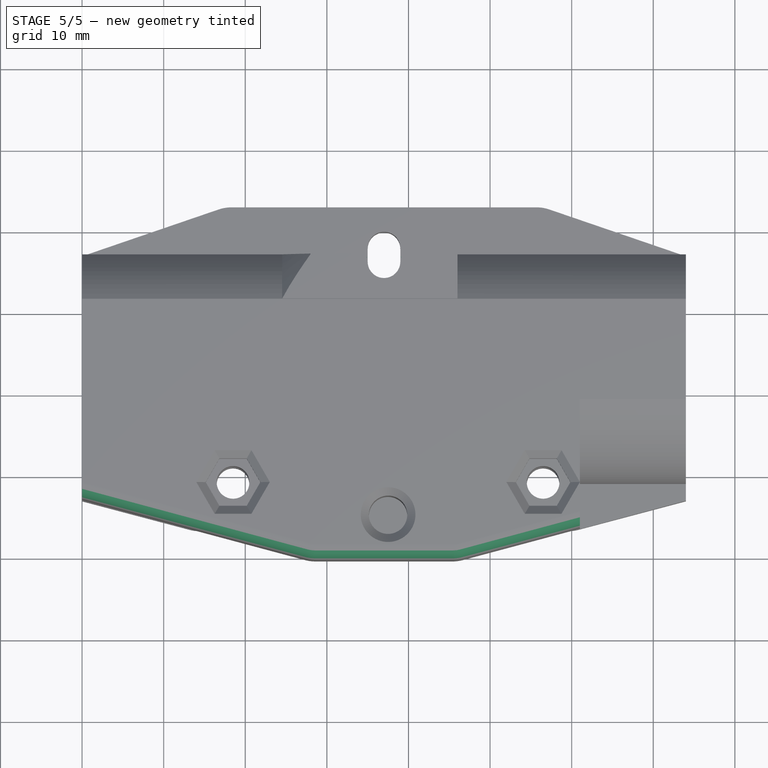
[diagram: stage 5 of 5 — top view after this stage's code; geometry added in this stage tinted green]
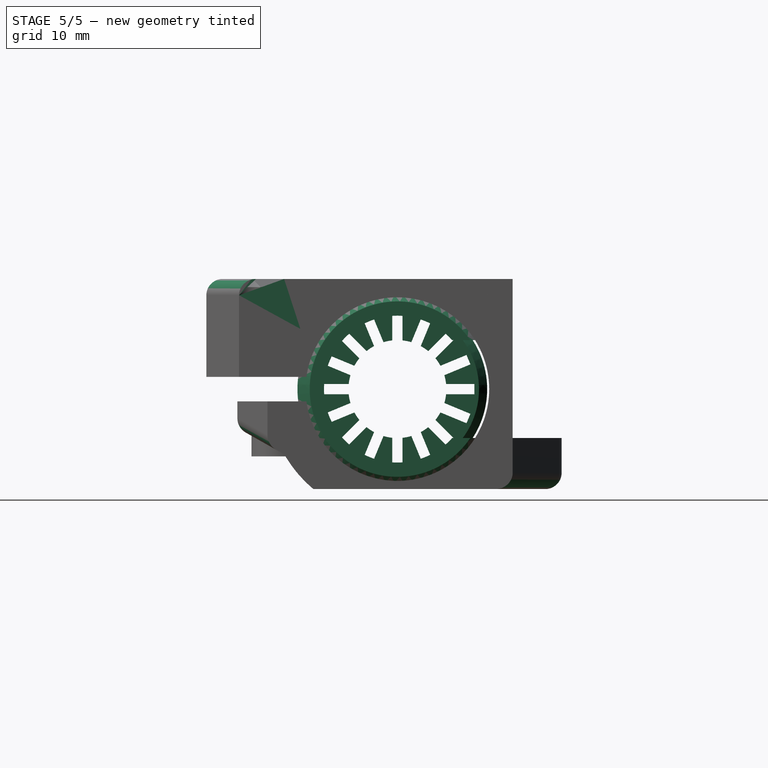
[diagram: stage 5 of 5 — right view after this stage's code; geometry added in this stage tinted green]
FEATURE [Part::FeaturePython] _2mm_bushing_retaining_ring_01  # a2plus imported part (geometry in sourceFile) (typed FeaturePython)
  Placement = pos=(1,32.875,12.25) rot=(0,1,0;1.5708rad)
  fixedPosition = false
  sourceFile = <userpath>/Projects/taz-redgum/production_parts/printed_parts/12mm_bushing_retaining_ring/12mm_bushing_retaining_ring.fcstd
  timeLastImport = 1.5562e+09
  updateColors = true
FEATURE [App::FeaturePython] circularEdgeConstraint02  label="circularEdgeConstraint02__Fillet002"  # a2plus constraint (typed FeaturePython)
  Object1 = _2mm_bushing_retaining_ring_01
  Object2 = Fillet002
  SubElement1 = Edge7
  SubElement2 = Edge236
  Type = circularEdge
  directionConstraint = 1
  lockRotation = false
  offset = 0
FEATURE [App::FeaturePython] circularEdgeConstraint02_mirror  label="circularEdgeConstraint02___2mm_bushing_retaining_ring_01"  # a2plus constraint (typed FeaturePython)
  Object1 = _2mm_bushing_retaining_ring_01
  Object2 = Fillet002
  SubElement1 = Edge7
  SubElement2 = Edge236
  Type = circularEdge
  directionConstraint = 1
  lockRotation = false
  offset = 0
FEATURE [Part::FeaturePython] _2mm_high_precision_bushing_01  # a2plus imported part (geometry in sourceFile) (typed FeaturePython)
  Placement = pos=(3,32.875,12.25) rot=(0,0,-1;1.5708rad)
  fixedPosition = false
  sourceFile = <userpath>/Projects/taz-quiver/production_parts/assemblies/12mm_high_precision_bushing.fcstd
  timeLastImport = 1.55352e+09
  updateColors = true
FEATURE [App::FeaturePython] circularEdgeConstraint03  label="circularEdgeConstraint03___2mm_bushing_retaining_ring_01"  # a2plus constraint (typed FeaturePython)
  Object1 = _2mm_high_precision_bushing_01
  Object2 = _2mm_bushing_retaining_ring_01
  SubElement1 = Edge1
  SubElement2 = Edge9
  Type = circularEdge
  directionConstraint = 1
  lockRotation = false
  offset = 0
FEATURE [App::FeaturePython] circularEdgeConstraint03_mirror  label="circularEdgeConstraint03___2mm_high_precision_bushing_01"  # a2plus constraint (typed FeaturePython)
  Object1 = _2mm_high_precision_bushing_01
  Object2 = _2mm_bushing_retaining_ring_01
  SubElement1 = Edge1
  SubElement2 = Edge9
  Type = circularEdge
  directionConstraint = 1
  lockRotation = false
  offset = 0
FEATURE [Part::FeaturePython] _2mm_bushing_retaining_ring_02  # a2plus imported part (geometry in sourceFile) (typed FeaturePython)
  Placement = pos=(72,32.875,12.25) rot=(0,1,0;1.5708rad)
  fixedPosition = false
  sourceFile = <userpath>/Projects/taz-redgum/production_parts/printed_parts/12mm_bushing_retaining_ring/12mm_bushing_retaining_ring.fcstd
  timeLastImport = 1.5562e+09
  updateColors = true
FEATURE [App::FeaturePython] circularEdgeConstraint04  label="circularEdgeConstraint04__Fillet002"  # a2plus constraint (typed FeaturePython)
  Object1 = _2mm_bushing_retaining_ring_02
  Object2 = Fillet002
  SubElement1 = Edge7
  SubElement2 = Edge233
  Type = circularEdge
  directionConstraint = 0
  lockRotation = false
  offset = 0
FEATURE [App::FeaturePython] circularEdgeConstraint04_mirror  label="circularEdgeConstraint04___2mm_bushing_retaining_ring_02"  # a2plus constraint (typed FeaturePython)
  Object1 = _2mm_bushing_retaining_ring_02
  Object2 = Fillet002
  SubElement1 = Edge7
  SubElement2 = Edge233
  Type = circularEdge
  directionConstraint = 0
  lockRotation = false
  offset = 0
FEATURE [Part::FeaturePython] _2mm_high_precision_bushing_02  # a2plus imported part (geometry in sourceFile) (typed FeaturePython)
  Placement = pos=(40,32.875,12.25) rot=(0,0,-1;1.5708rad)
  fixedPosition = false
  sourceFile = <userpath>/Projects/taz-quiver/production_parts/assemblies/12mm_high_precision_bushing.fcstd
  timeLastImport = 1.55352e+09
  updateColors = true
FEATURE [PartDesign::Fillet] Fillet001
  Base = -> Fillet [Edge156,Edge123,Edge4]
  BaseFeature = -> Fillet
  Placement = pos=(0,0,0) rot=(0.57735,0.57735,0.57735;2.0944rad)
  Radius = 2
FEATURE [PartDesign::Fillet] Fillet002
  Base = -> Fillet001 [Edge205,Edge333]
  BaseFeature = -> Fillet001
  Placement = pos=(0,0,0) rot=(0.57735,0.57735,0.57735;2.0944rad)
  Radius = 0.99
FEATURE [PartDesign::Body] Body
  Group = -> [Sketch,Sketch001,Sketch002,Sketch003,Sketch004,Sketch006,Sketch007,Sketch008,Sketch009,Sketch010,Sketch011,Sketch012,Sketch013,Sketch014,Sketch015,Sketch016,Pad,Pad001,Pocket,Pocket001,Pocket002,Sketch017,Pocket003,Pocket004,Pad002,Pocket005,Pocket006,Pocket007,Pad003,Pad004,Pocket008,Pocket009,Pad005,Pocket010,Sketch018,Pocket011,Sketch019,Pocket012,Chamfer,Chamfer001,Chamfer002,Chamfer003,+3 more]
  Origin = -> Origin
  Tip = -> Fillet002
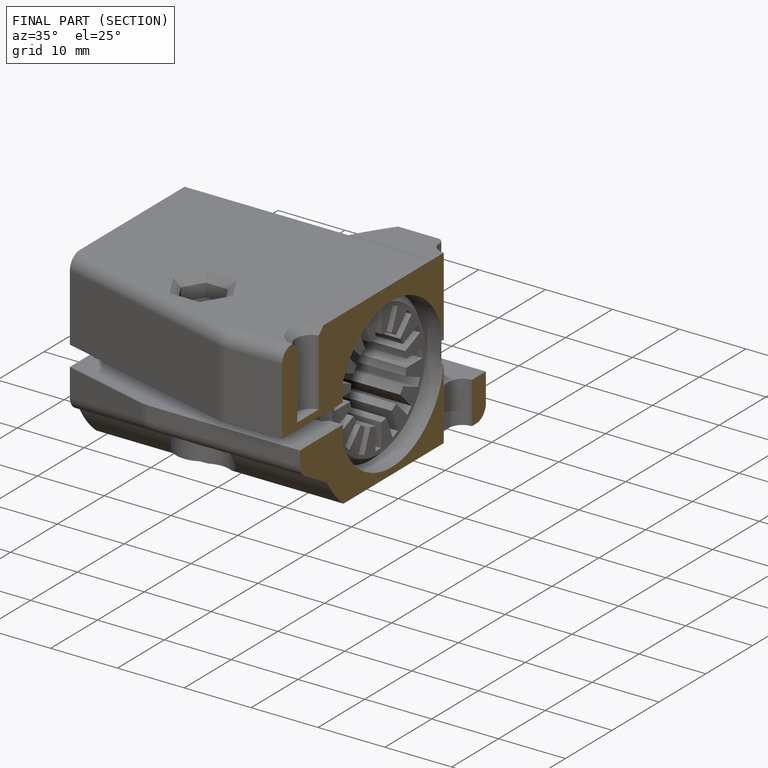
[diagram: finished part — half-section view (interior)]
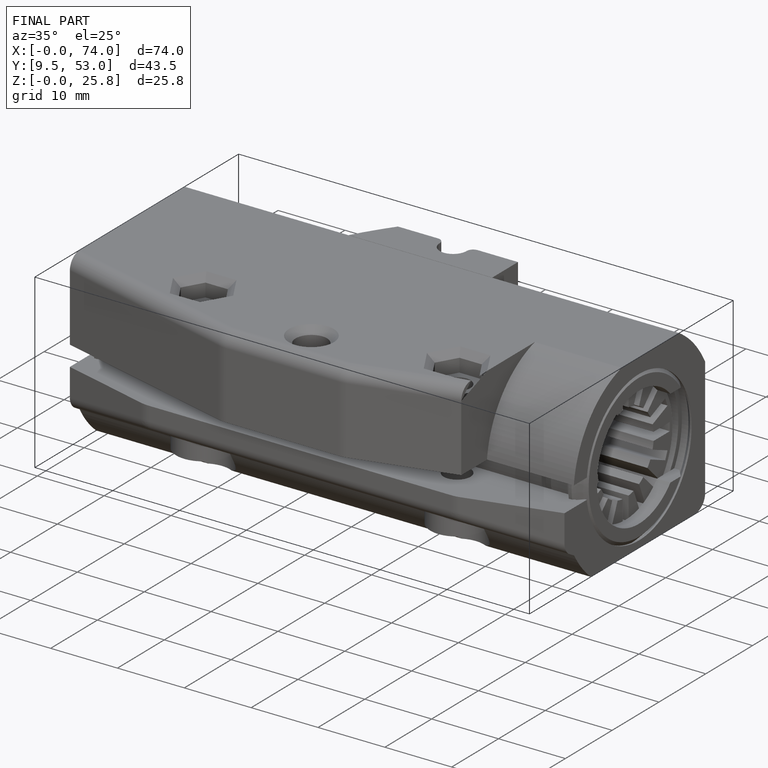
[diagram: finished part — iso view with bounding-box wireframe]
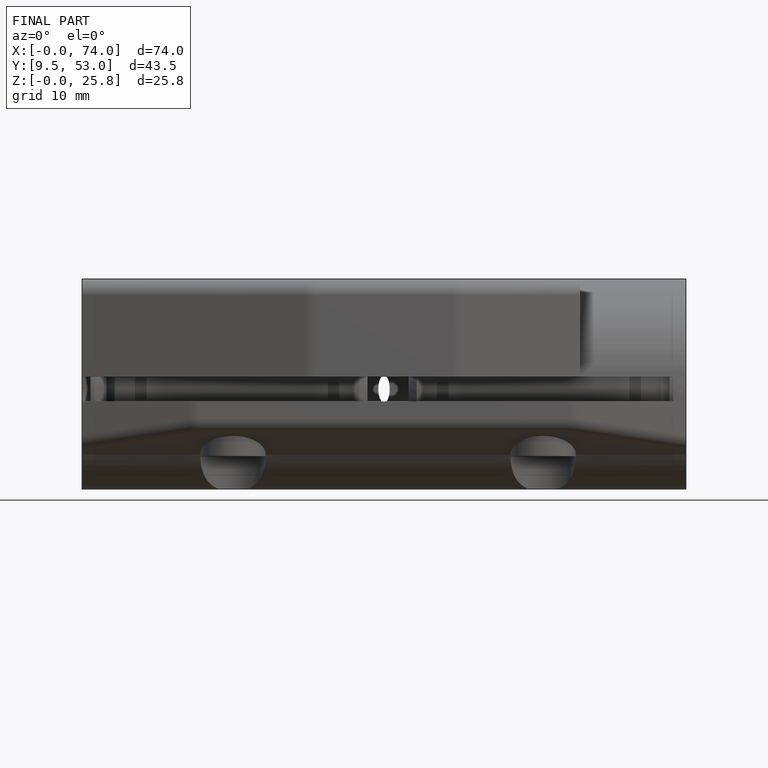
[diagram: finished part — front view with bounding-box wireframe]
